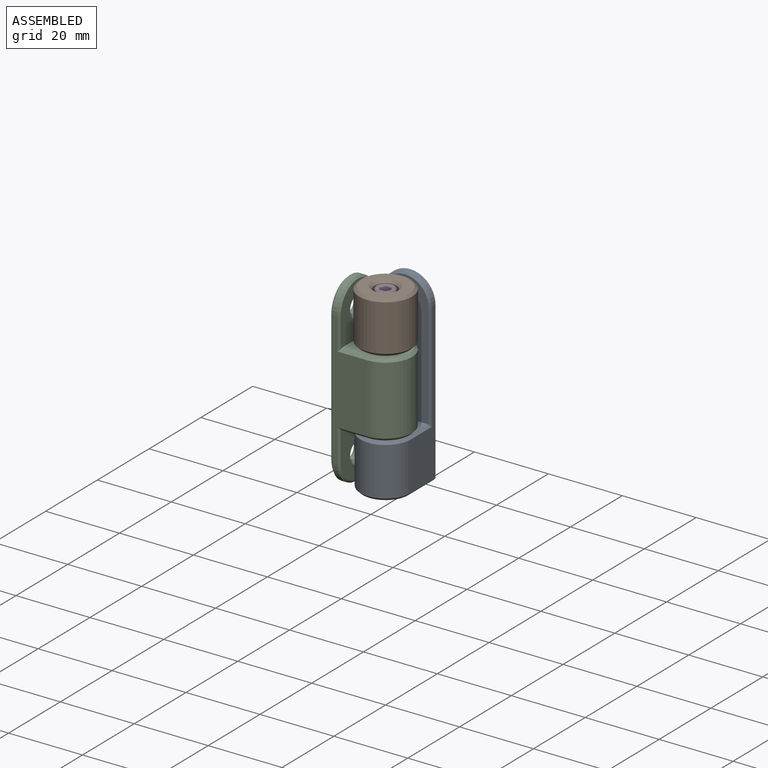
[diagram: assembled view]
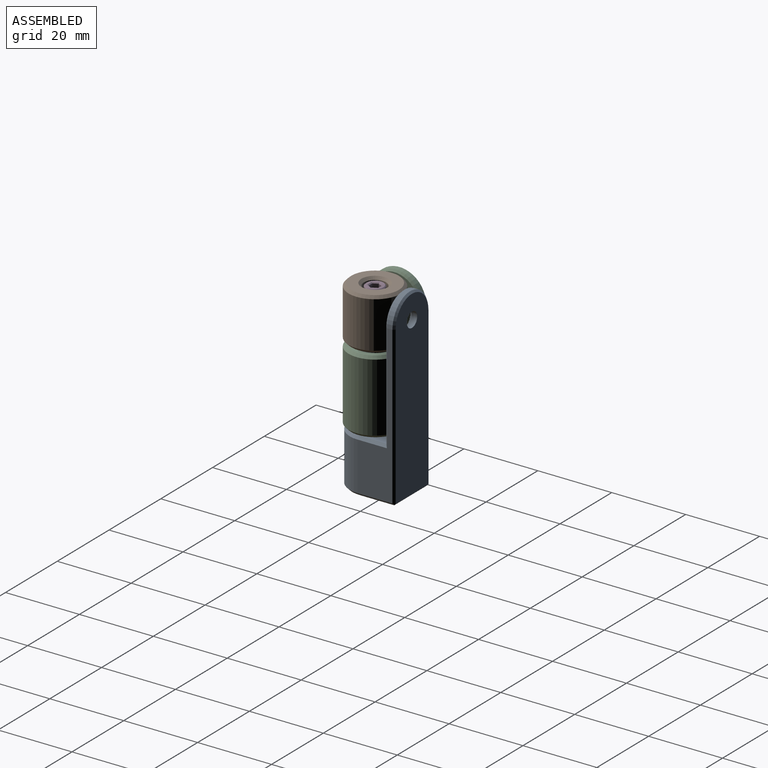
[diagram: assembled view, second angle]
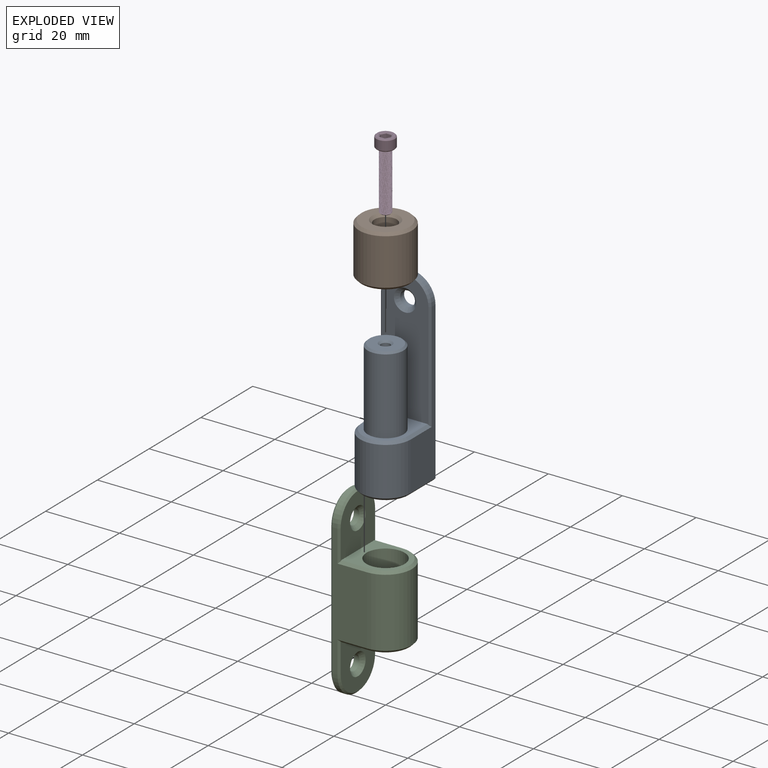
[diagram: exploded view]
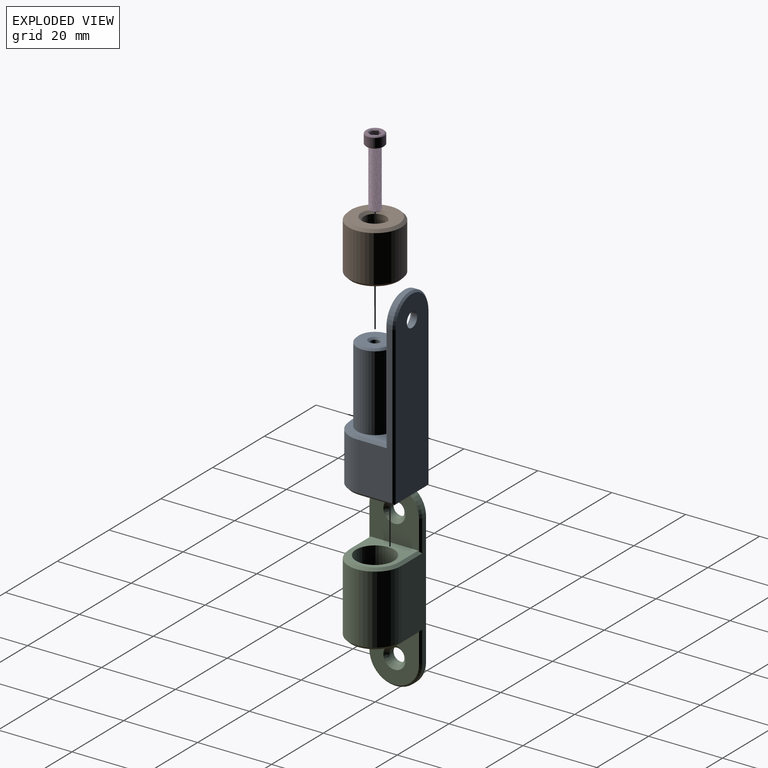
[diagram: exploded view, second angle]
ASSEMBLY  parts=4 mates=3
PART A: 29 faces, bbox 13.7x16.9x50 mm
  f0: plane 42.45x9.5mm, normal (1,0,0), area 168.5mm2, adj f5,f9,f16,f19,f22,f26
  f1: plane 49x12.7mm, normal (0,1,0), area 592.4mm2, adj f10,f22,f23,f24,f25
  f2: plane 35.2x12.7mm, normal (0,-1,0), area 399mm2, adj f3,f11,f16,f18,f26,f27,f28
  f3: plane 13.65x12.3mm, normal (0,0,1), area 77.8mm2, adj f2,f7,f16,f17,f18
  f4: plane 42.45x9.5mm, normal (-1,0,0), area 168.5mm2, adj f5,f9,f18,f21,f25,f28
  f5: cylinder r=6.85mm len=13.7mm, axis (0,0,1), area 281.9mm2, adj f0,f4,f17,f20
  f6: plane 15.65x12.3mm, normal (0,0,-1), area 176.3mm2, adj f19,f20,f21,f23
  f7: cylinder r=4.85mm len=20.5mm, axis (0,0,1), area 624.7mm2, adj f3,f14
  f8: plane 8.7x8.7mm, normal (0,0,1), area 49.8mm2, adj f14,f15
  f9: cylinder r=6.85mm len=13.7mm, axis (0,-1,0), area 32.3mm2, adj f0,f4,f24,f27
  f10: cylinder r=2mm len=4mm, axis (0,-1,0), area 18.8mm2, adj f1,f11
  f11: cone r=3mm half-angle=45deg, axis (0,-1,0), area 22.2mm2, adj f2,f10
  f12: cylinder r=1.25mm len=14.5mm, axis (0,0,1), area 113.9mm2, adj f13,f15
  f13: plane 2.5x2.5mm, normal (0,0,1), area 4.9mm2, adj f12
  f14: cone r=4.35mm half-angle=45deg, axis (0,0,-1), area 20.4mm2, adj f7,f8
  f15: cone r=1.25mm half-angle=45deg, axis (0,0,1), area 6.7mm2, adj f8,f12
  f16: plane 8x0.7mm, normal (0.71,0,0.71), area 7.6mm2, adj f0,f2,f3,f17,f26
  f17: cone r=6.15mm half-angle=45deg, axis (0,0,-1), area 20.2mm2, adj f3,f5,f16,f18
  f18: plane 8x0.7mm, normal (-0.71,0,0.71), area 7.6mm2, adj f2,f3,f4,f17,f28
  f19: plane 9.85x0.7mm, normal (0.71,0,-0.71), area 9.6mm2, adj f0,f6,f20,f22,f23
  f20: cone r=6.85mm half-angle=45deg, axis (0,0,1), area 20.2mm2, adj f5,f6,f19,f21
  f21: plane 9.85x0.7mm, normal (-0.71,0,-0.71), area 9.6mm2, adj f4,f6,f20,f23,f25
  f22: plane 42.8x0.5mm, normal (0.71,0.71,0), area 30.2mm2, adj f0,f1,f19,f23,f24
  f23: plane 13x0.5mm, normal (0,0.71,-0.71), area 9mm2, adj f1,f6,f19,f21,f22,f25
  f24: cone r=6.85mm half-angle=45deg, axis (0,-1,0), area 14.7mm2, adj f1,f9,f22,f25
  f25: plane 42.8x0.5mm, normal (-0.71,0.71,0), area 30.2mm2, adj f1,f4,f21,f23,f24
  f26: plane 29.35x0.5mm, normal (0.71,-0.71,0), area 20.6mm2, adj f0,f2,f16,f27
  f27: cone r=6.85mm half-angle=45deg, axis (0,1,0), area 14.7mm2, adj f2,f9,f26,f28
  f28: plane 29.35x0.5mm, normal (-0.71,-0.71,0), area 20.6mm2, adj f2,f4,f18,f27
PART B: 9 faces, bbox 14.3x14.3x14 mm
  f0: cylinder r=7.15mm len=14.3mm, axis (0,0,-1), area 566.1mm2, adj f6,f7
  f1: plane 12.9x12.9mm, normal (0,0,1), area 87.7mm2, adj f7,f8
  f2: plane 12.9x12.9mm, normal (0,0,-1), area 122.1mm2, adj f5,f6
  f3: cylinder r=3mm len=6mm, axis (0,0,1), area 52.8mm2, adj f4,f8
  f4: plane 6x6mm, normal (0,0,1), area 19.7mm2, adj f3,f5
  f5: cylinder r=1.65mm len=10.5mm, axis (0,0,1), area 108.9mm2, adj f2,f4
  f6: cone r=7.15mm half-angle=45deg, axis (0,0,1), area 42.3mm2, adj f0,f2
  f7: cone r=6.45mm half-angle=45deg, axis (0,0,-1), area 42.3mm2, adj f0,f1
  f8: cone r=3mm half-angle=45deg, axis (0,0,1), area 20.8mm2, adj f1,f3
PART C: 31 faces, bbox 17.2x14.3x50 mm
  f0: plane 14.7x13.3mm, normal (1,0,0), area 145.6mm2, adj f8,f13,f18,f20,f25,f26,f27
  f1: plane 35.7x9.5mm, normal (0,1,0), area 202.3mm2, adj f5,f9,f10,f17,f20,f24,f27,f30
  f2: plane 49x13.3mm, normal (-1,0,0), area 588.6mm2, adj f11,f12,f21,f22,f23,f24
  f3: plane 35.7x9.5mm, normal (0,-1,0), area 202.3mm2, adj f5,f9,f10,f15,f18,f21,f25,f28
  f4: plane 14.7x13.3mm, normal (1,0,0), area 145.6mm2, adj f7,f14,f15,f17,f28,f29,f30
  f5: cylinder r=7.15mm len=18.6mm, axis (0,0,-1), area 417.8mm2, adj f1,f3,f16,f19
  f6: cylinder r=5.15mm len=20mm, axis (0,0,-1), area 647.2mm2, adj f7,f8
  f7: plane 13.95x12.9mm, normal (0,0,1), area 78.8mm2, adj f4,f6,f15,f16,f17
  f8: plane 13.95x12.9mm, normal (0,0,-1), area 78.8mm2, adj f0,f6,f18,f19,f20
  f9: cylinder r=7.15mm len=14.3mm, axis (1,0,0), area 33.7mm2, adj f1,f3,f22,f29
  f10: cylinder r=7.15mm len=14.3mm, axis (1,0,0), area 33.7mm2, adj f1,f3,f23,f26
  f11: cylinder r=2mm len=4mm, axis (1,0,0), area 18.8mm2, adj f2,f14
  f12: cylinder r=2mm len=4mm, axis (1,0,0), area 18.8mm2, adj f2,f13
  f13: cone r=2mm half-angle=45deg, axis (1,0,0), area 22.2mm2, adj f0,f12
  f14: cone r=2mm half-angle=45deg, axis (1,0,0), area 22.2mm2, adj f4,f11
  f15: plane 8x0.7mm, normal (0,-0.71,0.71), area 7.6mm2, adj f3,f4,f7,f16,f28
  f16: cone r=6.45mm half-angle=45deg, axis (0,0,-1), area 21.1mm2, adj f5,f7,f15,f17
  f17: plane 8x0.7mm, normal (0,0.71,0.71), area 7.6mm2, adj f1,f4,f7,f16,f30
  f18: plane 8x0.7mm, normal (0,-0.71,-0.71), area 7.6mm2, adj f0,f3,f8,f19,f25
  f19: cone r=7.15mm half-angle=45deg, axis (0,0,1), area 21.1mm2, adj f5,f8,f18,f20
  f20: plane 8x0.7mm, normal (0,0.71,-0.71), area 7.6mm2, adj f0,f1,f8,f19,f27
  f21: plane 35.7x0.5mm, normal (-0.71,-0.71,0), area 25.2mm2, adj f2,f3,f22,f23
  f22: cone r=7.15mm half-angle=45deg, axis (1,0,0), area 15.3mm2, adj f2,f9,f21,f24
  f23: cone r=7.15mm half-angle=45deg, axis (1,0,0), area 15.3mm2, adj f2,f10,f21,f24
  f24: plane 35.7x0.5mm, normal (-0.71,0.71,0), area 25.2mm2, adj f1,f2,f22,f23
  f25: plane 8.55x0.5mm, normal (0.71,-0.71,0), area 5.9mm2, adj f0,f3,f18,f26
  f26: cone r=6.65mm half-angle=45deg, axis (-1,0,0), area 15.3mm2, adj f0,f10,f25,f27
  f27: plane 8.55x0.5mm, normal (0.71,0.71,0), area 5.9mm2, adj f0,f1,f20,f26
  f28: plane 8.55x0.5mm, normal (0.71,-0.71,0), area 5.9mm2, adj f3,f4,f15,f29
  f29: cone r=6.65mm half-angle=45deg, axis (-1,0,0), area 15.3mm2, adj f4,f9,f28,f30
  f30: plane 8.55x0.5mm, normal (0.71,0.71,0), area 5.9mm2, adj f1,f4,f17,f29
PART D: 23 faces, bbox 5.2x5.2x19.3 mm
  f0: plane 4.5x4.5mm, normal (0,0,1), area 8.1mm2, adj f8,f17,f18,f19,f20,f21,f22
  f1: cylinder r=1.5mm len=15.75mm, axis (0,0,1), area 32.6mm2, adj f3,f4,f5,f7
  f2: plane 2.5x2.5mm, normal (0,0,-1), area 4.9mm2, adj f3
  f3: cone r=1.5mm half-angle=45deg, axis (0,0,1), area 1.8mm2, adj f1,f2,f4,f5
  f4: bspline ~16.2x3.46mm, area 133.1mm2, adj f1,f3,f5,f7
  f5: bspline ~16.12x3.46mm, area 134.2mm2, adj f1,f3,f4,f7
  f6: cylinder r=2.5mm len=5mm, axis (0,0,-1), area 39.3mm2, adj f8,f9
  f7: plane 4.67x4.67mm, normal (0,0,-1), area 9.7mm2, adj f1,f4,f5,f9
  f8: cone r=2.25mm half-angle=45deg, axis (0,0,-1), area 5.3mm2, adj f0,f6
  f9: cone r=2.5mm half-angle=45deg, axis (0,0,1), area 5.3mm2, adj f6,f7
  f10: plane 1.35x1.25mm, normal (-0.87,-0.5,0), area 1.9mm2, adj f11,f15,f16,f22
  f11: plane 1.44x1.35mm, normal (0,-1,0), area 1.9mm2, adj f10,f12,f16,f20
  f12: plane 1.35x1.25mm, normal (0.87,-0.5,0), area 1.9mm2, adj f11,f13,f16,f18
  f13: plane 1.35x1.25mm, normal (0.87,0.5,0), area 1.9mm2, adj f12,f14,f16,f17
  f14: plane 1.44x1.35mm, normal (0,1,0), area 1.9mm2, adj f13,f15,f16,f19
  f15: plane 1.35x1.25mm, normal (-0.87,0.5,0), area 1.9mm2, adj f10,f14,f16,f21
  f16: plane 2.89x2.5mm, normal (0,0,1), area 5.4mm2, adj f10,f11,f12,f13,f14,f15
  f17: plane 1.5x1.01mm, normal (0.61,0.35,0.71), area 0.6mm2, adj f0,f13,f18,f19
  f18: plane 1.5x1.01mm, normal (0.61,-0.35,0.71), area 0.6mm2, adj f0,f12,f17,f20
  f19: plane 1.73x0.25mm, normal (0,0.71,0.71), area 0.6mm2, adj f0,f14,f17,f21
  f20: plane 1.73x0.25mm, normal (0,-0.71,0.71), area 0.6mm2, adj f0,f11,f18,f22
  f21: plane 1.5x1.01mm, normal (-0.61,0.35,0.71), area 0.6mm2, adj f0,f15,f19,f22
  f22: plane 1.5x1.01mm, normal (-0.61,-0.35,0.71), area 0.6mm2, adj f0,f10,f20,f21
PLACE A at identity fixed
PLACE B at identity
PLACE C rot(axis=(0,0,1),0deg) t=(0,0,-0.25)mm
PLACE D t=(0,0,21)mm
MATE revolute D.f1 <-> B.f3  axis (0,0,-1) through (0,0,21)mm
MATE revolute A.f7 <-> C.f6  axis (0,0,1) through (0,0,-0.25)mm
MATE fastened B.f0 <-> A.f12  axis (0,0,-1) through (0,0,10.5)mm
